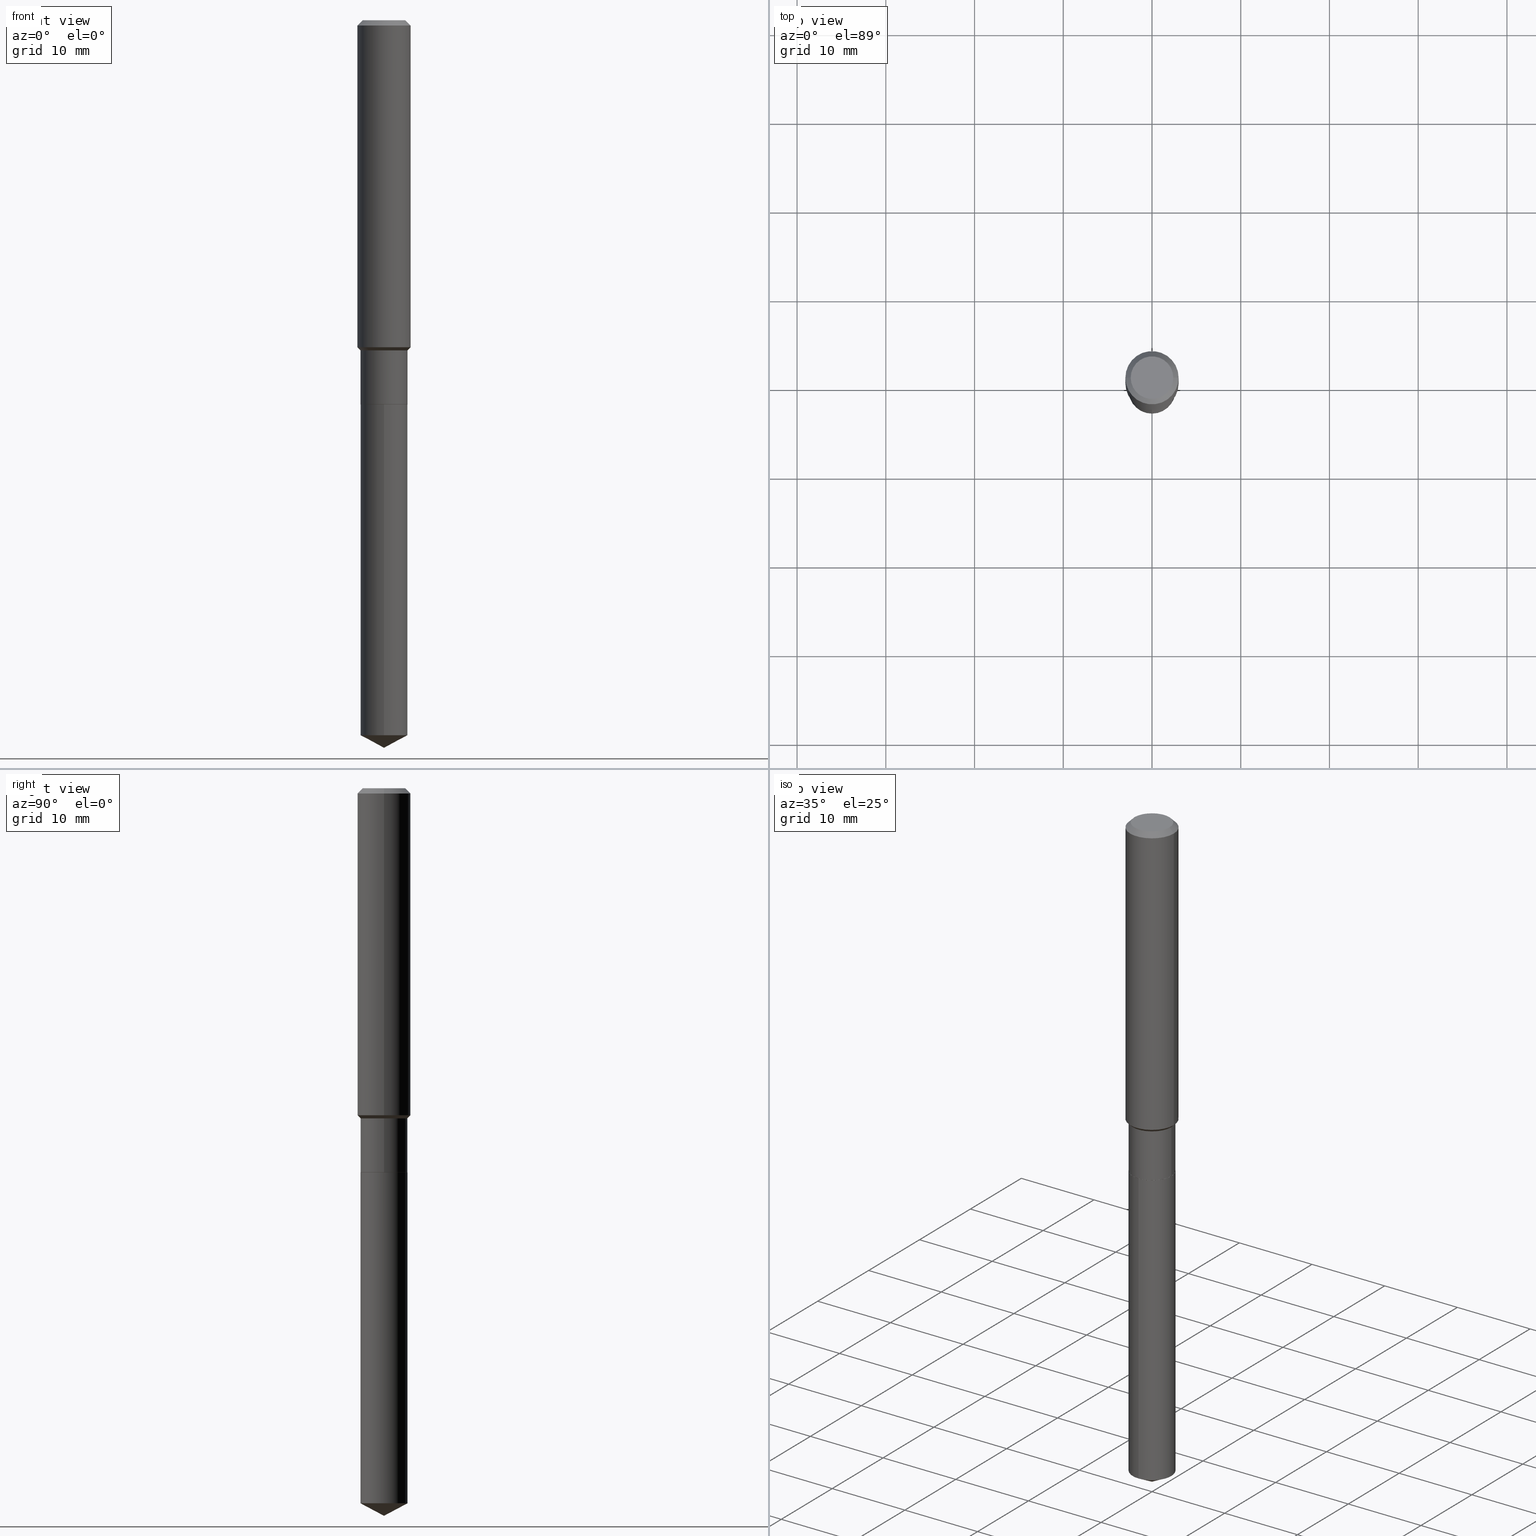
[diagram: canonical four-view strip — front | top / right | iso, engineering-drawing reading convention]
A machine part, canonical four-view strip (front | top / right | iso — engineering-drawing reading convention). The complete STEP part file that produces these views, byte-faithful:
ISO-10303-21;
HEADER;
FILE_DESCRIPTION (( 'STEP AP203' ),
    '1' );
FILE_NAME ('65023.STEP',
    '2024-04-24T19:54:22',
    ( '' ),
    ( '' ),
    'SwSTEP 2.0',
    'SolidWorks 2023',
    '' );
FILE_SCHEMA (( 'CONFIG_CONTROL_DESIGN' ));
ENDSEC;

DATA;
#1 = CARTESIAN_POINT ( 'NONE',  ( 4.168790673903801858E-29, -5.951928238325910137E-15, -1.704699999999999882 ) ) ;
#2 = AXIS2_PLACEMENT_3D ( 'NONE', #20, #179, #142 ) ;
#3 = EDGE_LOOP ( 'NONE', ( #419, #229, #440, #464 ) ) ;
#4 = PRODUCT_DEFINITION_SHAPE ( 'NONE', 'NONE',  #246 ) ;
#5 = COORDINATED_UNIVERSAL_TIME_OFFSET ( 5, 0, .BEHIND. ) ;
#6 = FACE_OUTER_BOUND ( 'NONE', #314, .T. ) ;
#7 = EDGE_CURVE ( 'NONE', #355, #467, #446, .T. ) ;
#8 = VERTEX_POINT ( 'NONE', #248 ) ;
#9 = PERSON_AND_ORGANIZATION ( #29, #466 ) ;
#10 = CARTESIAN_POINT ( 'NONE',  ( 4.168790673903801858E-29, -5.951928238325910137E-15, -1.704699999999999882 ) ) ;
#11 = VERTEX_POINT ( 'NONE', #423 ) ;
#12 = CARTESIAN_POINT ( 'NONE',  ( 0.1043499999999999844, -6.678854653073050255E-15, -1.704200000000000159 ) ) ;
#13 = DIRECTION ( 'NONE',  ( 1.000000000000000000, -6.982962677686267499E-15, 4.875432709231658792E-29 ) ) ;
#14 = CIRCLE ( 'NONE', #478, 0.1043499999999999844 ) ;
#15 = AXIS2_PLACEMENT_3D ( 'NONE', #120, #443, #450 ) ;
#16 = ADVANCED_FACE ( 'NONE', ( #459 ), #125, .T. ) ;
#17 = CARTESIAN_POINT ( 'NONE',  ( 0.000000000000000000, 0.000000000000000000, 0.000000000000000000 ) ) ;
#18 = EDGE_CURVE ( 'NONE', #11, #210, #370, .T. ) ;
#19 = DIRECTION ( 'NONE',  ( -2.445468806185136597E-29, 3.491481338843145583E-15, 1.000000000000000000 ) ) ;
#20 = CARTESIAN_POINT ( 'NONE',  ( 4.168790673903801858E-29, -5.951928238325910137E-15, -1.704699999999999882 ) ) ;
#21 = VECTOR ( 'NONE', #194, 39.37007874015748143 ) ;
#22 = DIRECTION ( 'NONE',  ( 2.445468806185136597E-29, -3.491481338843145583E-15, -1.000000000000000000 ) ) ;
#23 = EDGE_CURVE ( 'NONE', #150, #233, #315, .T. ) ;
#24 = CARTESIAN_POINT ( 'NONE',  ( -7.286721554164842150E-16, -0.1043500000000110589, -3.172816120806124296 ) ) ;
#25 = CARTESIAN_POINT ( 'NONE',  ( 3.581878160419369815E-29, -5.113972717003555292E-15, -1.464700000000000113 ) ) ;
#26 = EDGE_CURVE ( 'NONE', #210, #131, #171, .T. ) ;
#27 = AXIS2_PLACEMENT_3D ( 'NONE', #379, #310, #240 ) ;
#28 = FACE_OUTER_BOUND ( 'NONE', #200, .T. ) ;
#29 = PERSON ( 'UNSPECIFIED', 'UNSPECIFIED', 'UNSPECIFIED', ('UNSPECIFIED'), ('UNSPECIFIED'), ('UNSPECIFIED') ) ;
#30 = LINE ( 'NONE', #477, #144 ) ;
#31 = DIRECTION ( 'NONE',  ( 1.000000000000000000, -6.982962677686263555E-15, 0.000000000000000000 ) ) ;
#32 = EDGE_CURVE ( 'NONE', #397, #233, #83, .T. ) ;
#33 = CALENDAR_DATE ( 2024, 24, 4 ) ;
#34 = CC_DESIGN_APPROVAL ( #159, ( #246 ) ) ;
#35 = CARTESIAN_POINT ( 'NONE',  ( 5.776197320209327532E-31, -8.246878922347559293E-17, -0.02362000000000014088 ) ) ;
#36 = EDGE_LOOP ( 'NONE', ( #56, #331 ) ) ;
#37 = CARTESIAN_POINT ( 'NONE',  ( -0.1043499999999999706, 7.414513447656643348E-16, -5.132908766680992704E-30 ) ) ;
#38 = APPROVAL_STATUS ( 'not_yet_approved' ) ;
#39 = CARTESIAN_POINT ( 'NONE',  ( 7.759082448504334788E-29, -1.107774293063296886E-14, -3.172816120806124740 ) ) ;
#40 = ORIENTED_EDGE ( 'NONE', *, *, #258, .T. ) ;
#41 = CARTESIAN_POINT ( 'NONE',  ( -0.1181000000000001632, -4.226813877661782197E-15, -1.450949999999999962 ) ) ;
#42 = CONICAL_SURFACE ( 'NONE', #398, 0.1180999999999999966, 0.7853981633974460586 ) ;
#43 = CIRCLE ( 'NONE', #266, 0.1043499999999999567 ) ;
#44 = EDGE_LOOP ( 'NONE', ( #280, #350, #195 ) ) ;
#45 = APPROVAL_ROLE ( '' ) ;
#46 = CC_DESIGN_DATE_AND_TIME_ASSIGNMENT ( #191, #345, ( #246 ) ) ;
#47 = CARTESIAN_POINT ( 'NONE',  ( 7.414513447657420375E-16, 0.1043499999999889100, -3.172816120806125628 ) ) ;
#48 = ORIENTED_EDGE ( 'NONE', *, *, #429, .F. ) ;
#49 = ORIENTED_EDGE ( 'NONE', *, *, #168, .F. ) ;
#50 = LINE ( 'NONE', #238, #66 ) ;
#51 = AXIS2_PLACEMENT_3D ( 'NONE', #214, #140, #359 ) ;
#52 = VERTEX_POINT ( 'NONE', #285 ) ;
#53 = VECTOR ( 'NONE', #259, 39.37007874015748143 ) ;
#54 = EDGE_CURVE ( 'NONE', #52, #131, #247, .T. ) ;
#55 = APPLICATION_CONTEXT ( 'configuration controlled 3d designs of mechanical parts and assemblies' ) ;
#56 = ORIENTED_EDGE ( 'NONE', *, *, #7, .F. ) ;
#57 = ADVANCED_BREP_SHAPE_REPRESENTATION ( '65023', ( #279, #103, #176 ), #198 ) ;
#58 = DIRECTION ( 'NONE',  ( -2.445468806185136877E-29, 3.491481338843145188E-15, 1.000000000000000000 ) ) ;
#59 = ADVANCED_FACE ( 'NONE', ( #211 ), #356, .F. ) ;
#60 = DIRECTION ( 'NONE',  ( 2.438088387897960049E-29, -3.491481338843145188E-15, -1.000000000000000000 ) ) ;
#61 = AXIS2_PLACEMENT_3D ( 'NONE', #257, #141, #216 ) ;
#62 = LOCAL_TIME ( 15, 54, 22.00000000000000000, #418 ) ;
#63 = CARTESIAN_POINT ( 'NONE',  ( 7.759082448504334788E-29, -1.107774293063296886E-14, -3.172816120806124740 ) ) ;
#64 = CARTESIAN_POINT ( 'NONE',  ( 4.168790673903801858E-29, -5.951928238325910137E-15, -1.704699999999999882 ) ) ;
#65 = PLANE ( 'NONE',  #123 ) ;
#66 = VECTOR ( 'NONE', #204, 39.37007874015748143 ) ;
#67 = LINE ( 'NONE', #220, #317 ) ;
#68 = CARTESIAN_POINT ( 'NONE',  ( 0.1043499999999999567, -5.842644872420116914E-15, -1.464700000000000113 ) ) ;
#69 = ADVANCED_FACE ( 'NONE', ( #470 ), #65, .F. ) ;
#70 = DIRECTION ( 'NONE',  ( 1.000000000000000000, -6.982962677686266711E-15, 0.000000000000000000 ) ) ;
#71 = ORIENTED_EDGE ( 'NONE', *, *, #18, .T. ) ;
#72 = PERSON_AND_ORGANIZATION ( #29, #466 ) ;
#73 = VECTOR ( 'NONE', #437, 39.37007874015748143 ) ;
#74 = AXIS2_PLACEMENT_3D ( 'NONE', #412, #376, #416 ) ;
#75 = DIRECTION ( 'NONE',  ( -2.445468806185136597E-29, 3.491481338843145583E-15, 1.000000000000000000 ) ) ;
#76 = EDGE_LOOP ( 'NONE', ( #245, #161, #377 ) ) ;
#77 = DATE_TIME_ROLE ( 'classification_date' ) ;
#78 = CARTESIAN_POINT ( 'NONE',  ( 7.894839211577179450E-29, -1.127136153377891818E-14, -3.228299999999999947 ) ) ;
#79 = ORIENTED_EDGE ( 'NONE', *, *, #99, .T. ) ;
#80 = CARTESIAN_POINT ( 'NONE',  ( 4.168790673903801858E-29, -5.951928238325910137E-15, -1.704699999999999882 ) ) ;
#81 = PERSON_AND_ORGANIZATION ( #29, #466 ) ;
#82 = FACE_OUTER_BOUND ( 'NONE', #282, .T. ) ;
#83 = CIRCLE ( 'NONE', #212, 0.1043499999999999844 ) ;
#84 = EDGE_LOOP ( 'NONE', ( #385, #146, #203, #316 ) ) ;
#85 = ADVANCED_FACE ( 'NONE', ( #250 ), #431, .T. ) ;
#86 = CARTESIAN_POINT ( 'NONE',  ( 4.168790673903801858E-29, -5.951928238325910137E-15, -1.704699999999999882 ) ) ;
#87 = DIRECTION ( 'NONE',  ( 1.000000000000000000, -6.982962677686266711E-15, 4.876176775795936353E-29 ) ) ;
#88 = ADVANCED_FACE ( 'NONE', ( #28 ), #357, .T. ) ;
#89 = CARTESIAN_POINT ( 'NONE',  ( 0.1180999999999999966, -8.926936027602933910E-16, -0.02362000000000014088 ) ) ;
#90 = VECTOR ( 'NONE', #129, 39.37007874015748143 ) ;
#91 = DIRECTION ( 'NONE',  ( -2.445509400597785570E-29, 3.491423205333741467E-15, 1.000000000000000000 ) ) ;
#92 = AXIS2_PLACEMENT_3D ( 'NONE', #86, #272, #236 ) ;
#93 = ORIENTED_EDGE ( 'NONE', *, *, #262, .T. ) ;
#94 = ORIENTED_EDGE ( 'NONE', *, *, #403, .T. ) ;
#95 = CARTESIAN_POINT ( 'NONE',  ( 5.776197320209327532E-31, -8.246878922347559293E-17, -0.02362000000000014088 ) ) ;
#96 = AXIS2_PLACEMENT_3D ( 'NONE', #10, #389, #122 ) ;
#97 = CARTESIAN_POINT ( 'NONE',  ( -0.1043499999999999567, -4.790626262564358219E-15, -1.464700000000000113 ) ) ;
#98 = CARTESIAN_POINT ( 'NONE',  ( 5.776197320209327532E-31, -8.246878922347559293E-17, -0.02362000000000014088 ) ) ;
#99 = EDGE_CURVE ( 'NONE', #172, #380, #100, .T. ) ;
#100 = LINE ( 'NONE', #363, #73 ) ;
#101 = AXIS2_PLACEMENT_3D ( 'NONE', #35, #160, #70 ) ;
#102 = SECURITY_CLASSIFICATION ( '', '', #378 ) ;
#103 = MANIFOLD_SOLID_BREP ( 'Body-Move/Copy2[2]', #155 ) ;
#104 = DIRECTION ( 'NONE',  ( -2.445509400597785570E-29, 3.491423205333741467E-15, 1.000000000000000000 ) ) ;
#105 = EDGE_CURVE ( 'NONE', #150, #452, #14, .T. ) ;
#106 = CYLINDRICAL_SURFACE ( 'NONE', #436, 0.1181000000000000799 ) ;
#107 = PERSON_AND_ORGANIZATION ( #29, #466 ) ;
#108 = DIRECTION ( 'NONE',  ( 1.000000000000000000, -6.982962677686263555E-15, 0.000000000000000000 ) ) ;
#109 = ORIENTED_EDGE ( 'NONE', *, *, #235, .T. ) ;
#110 = APPROVAL_ROLE ( '' ) ;
#111 = AXIS2_PLACEMENT_3D ( 'NONE', #439, #75, #108 ) ;
#112 = APPROVAL_PERSON_ORGANIZATION ( #375, #402, #45 ) ;
#113 = LINE ( 'NONE', #294, #53 ) ;
#114 = EDGE_CURVE ( 'NONE', #210, #11, #343, .T. ) ;
#115 = ORIENTED_EDGE ( 'NONE', *, *, #304, .F. ) ;
#116 = DATE_AND_TIME ( #196, #170 ) ;
#117 = DIRECTION ( 'NONE',  ( -2.445468806185136597E-29, 3.491481338843145583E-15, 1.000000000000000000 ) ) ;
#118 = ORIENTED_EDGE ( 'NONE', *, *, #235, .F. ) ;
#119 = CALENDAR_DATE ( 2024, 24, 4 ) ;
#120 = CARTESIAN_POINT ( 'NONE',  ( 3.548252964334323940E-29, -5.065964848594461971E-15, -1.450949999999999962 ) ) ;
#121 = ORIENTED_EDGE ( 'NONE', *, *, #429, .T. ) ;
#122 = DIRECTION ( 'NONE',  ( -6.982962677686265922E-15, -1.000000000000000000, 2.617966452960482631E-15 ) ) ;
#123 = AXIS2_PLACEMENT_3D ( 'NONE', #293, #60, #135 ) ;
#124 = AXIS2_PLACEMENT_3D ( 'NONE', #462, #127, #166 ) ;
#125 = CYLINDRICAL_SURFACE ( 'NONE', #249, 0.1181000000000000799 ) ;
#126 = EDGE_CURVE ( 'NONE', #380, #154, #254, .T. ) ;
#127 = DIRECTION ( 'NONE',  ( -2.445509400597785570E-29, 3.491423205333741467E-15, 1.000000000000000000 ) ) ;
#128 = ORIENTED_EDGE ( 'NONE', *, *, #403, .F. ) ;
#129 = DIRECTION ( 'NONE',  ( -2.445509400597785570E-29, 3.491423205333741862E-15, 1.000000000000000000 ) ) ;
#130 = CONICAL_SURFACE ( 'NONE', #51, 0.1043499999999999567, 0.7853981633974526089 ) ;
#131 = VERTEX_POINT ( 'NONE', #472 ) ;
#132 = ADVANCED_FACE ( 'NONE', ( #287 ), #130, .T. ) ;
#133 = AXIS2_PLACEMENT_3D ( 'NONE', #349, #202, #275 ) ;
#134 = ORIENTED_EDGE ( 'NONE', *, *, #366, .T. ) ;
#135 = DIRECTION ( 'NONE',  ( -1.000000000000000000, 6.982962677686265922E-15, -4.876176775795935793E-29 ) ) ;
#136 = DIRECTION ( 'NONE',  ( -2.445468806185136597E-29, 3.491481338843145583E-15, 1.000000000000000000 ) ) ;
#137 = AXIS2_PLACEMENT_3D ( 'NONE', #289, #399, #321 ) ;
#138 = LOCAL_TIME ( 15, 54, 22.00000000000000000, #5 ) ;
#139 = EDGE_CURVE ( 'NONE', #172, #286, #404, .T. ) ;
#140 = DIRECTION ( 'NONE',  ( -2.445468806185136597E-29, 3.491481338843145583E-15, 1.000000000000000000 ) ) ;
#141 = DIRECTION ( 'NONE',  ( -2.445468806185136597E-29, 3.491481338843145583E-15, 1.000000000000000000 ) ) ;
#142 = DIRECTION ( 'NONE',  ( 1.000000000000000000, -6.982962677686265922E-15, 4.876176775795935793E-29 ) ) ;
#143 = ADVANCED_FACE ( 'NONE', ( #430 ), #288, .T. ) ;
#144 = VECTOR ( 'NONE', #268, 39.37007874015748143 ) ;
#145 = DIRECTION ( 'NONE',  ( -2.445468806185136597E-29, 3.491481338843145583E-15, 1.000000000000000000 ) ) ;
#146 = ORIENTED_EDGE ( 'NONE', *, *, #18, .F. ) ;
#147 = PRODUCT_RELATED_PRODUCT_CATEGORY ( 'detail', '', ( #302 ) ) ;
#148 = PERSON_AND_ORGANIZATION_ROLE ( 'design_owner' ) ;
#149 = DIRECTION ( 'NONE',  ( -2.445509400597785570E-29, 3.491423205333741467E-15, 1.000000000000000000 ) ) ;
#150 = VERTEX_POINT ( 'NONE', #24 ) ;
#151 = UNCERTAINTY_MEASURE_WITH_UNIT (LENGTH_MEASURE( 1.000000000000000082E-05 ), #230, 'distance_accuracy_value', 'NONE');
#152 = PERSON_AND_ORGANIZATION_ROLE ( 'creator' ) ;
#153 = CYLINDRICAL_SURFACE ( 'NONE', #256, 0.1043499999999999706 ) ;
#154 = VERTEX_POINT ( 'NONE', #177 ) ;
#155 = CLOSED_SHELL ( 'NONE', ( #88, #219, #361, #85, #414, #277, #132, #16, #143, #69, #59, #296 ) ) ;
#156 = PERSON_AND_ORGANIZATION_ROLE ( 'design_supplier' ) ;
#157 = AXIS2_PLACEMENT_3D ( 'NONE', #185, #117, #480 ) ;
#158 = APPROVAL_PERSON_ORGANIZATION ( #9, #336, #110 ) ;
#159 = APPROVAL ( #453, 'UNSPECIFIED' ) ;
#160 = DIRECTION ( 'NONE',  ( -2.445468806185136597E-29, 3.491481338843145583E-15, 1.000000000000000000 ) ) ;
#161 = ORIENTED_EDGE ( 'NONE', *, *, #332, .T. ) ;
#162 = COORDINATED_UNIVERSAL_TIME_OFFSET ( 5, 0, .BEHIND. ) ;
#163 = DIRECTION ( 'NONE',  ( 1.000000000000000000, -6.982962677686268288E-15, 0.000000000000000000 ) ) ;
#164 = ORIENTED_EDGE ( 'NONE', *, *, #320, .T. ) ;
#165 = APPLICATION_PROTOCOL_DEFINITION ( 'international standard', 'config_control_design', 1994, #55 ) ;
#166 = DIRECTION ( 'NONE',  ( -6.982962677686268288E-15, -1.000000000000000000, 3.541896320645571124E-15 ) ) ;
#167 = ORIENTED_EDGE ( 'NONE', *, *, #406, .T. ) ;
#168 = EDGE_CURVE ( 'NONE', #452, #397, #322, .T. ) ;
#169 = CYLINDRICAL_SURFACE ( 'NONE', #96, 0.1043499999999999844 ) ;
#170 = LOCAL_TIME ( 15, 54, 22.00000000000000000, #449 ) ;
#171 = LINE ( 'NONE', #89, #243 ) ;
#172 = VERTEX_POINT ( 'NONE', #97 ) ;
#173 = DIRECTION ( 'NONE',  ( -6.982962677686265922E-15, -1.000000000000000000, 2.617966452960482631E-15 ) ) ;
#174 = VECTOR ( 'NONE', #263, 39.37007874015748854 ) ;
#175 = ORIENTED_EDGE ( 'NONE', *, *, #105, .T. ) ;
#176 = AXIS2_PLACEMENT_3D ( 'NONE', #441, #201, #457 ) ;
#177 = CARTESIAN_POINT ( 'NONE',  ( -0.1180999999999999966, -1.735065847976289334E-15, -0.02362000000000014088 ) ) ;
#178 = EDGE_CURVE ( 'NONE', #467, #355, #206, .T. ) ;
#179 = DIRECTION ( 'NONE',  ( -2.438088387897960049E-29, 3.491481338843145188E-15, 1.000000000000000000 ) ) ;
#180 = FACE_OUTER_BOUND ( 'NONE', #3, .T. ) ;
#181 = CC_DESIGN_SECURITY_CLASSIFICATION ( #102, ( #274 ) ) ;
#182 = ADVANCED_FACE ( 'NONE', ( #184 ), #400, .T. ) ;
#183 = DIRECTION ( 'NONE',  ( 1.000000000000000000, -6.982962677686267499E-15, 4.875432709231658792E-29 ) ) ;
#184 = FACE_OUTER_BOUND ( 'NONE', #276, .T. ) ;
#185 = CARTESIAN_POINT ( 'NONE',  ( 0.000000000000000000, 0.000000000000000000, 0.000000000000000000 ) ) ;
#186 = AXIS2_PLACEMENT_3D ( 'NONE', #39, #149, #303 ) ;
#187 = DESIGN_CONTEXT ( 'detailed design', #55, 'design' ) ;
#188 = APPROVAL_STATUS ( 'not_yet_approved' ) ;
#189 = DIRECTION ( 'NONE',  ( -0.7071067811866199593, 7.493145998870616062E-15, 0.7071067811864750752 ) ) ;
#190 = ORIENTED_EDGE ( 'NONE', *, *, #262, .F. ) ;
#191 = DATE_AND_TIME ( #33, #138 ) ;
#192 = LINE ( 'NONE', #221, #381 ) ;
#193 = ORIENTED_EDGE ( 'NONE', *, *, #7, .T. ) ;
#194 = DIRECTION ( 'NONE',  ( -2.445468806185136877E-29, 3.491481338843145188E-15, 1.000000000000000000 ) ) ;
#195 = ORIENTED_EDGE ( 'NONE', *, *, #366, .F. ) ;
#196 = CALENDAR_DATE ( 2024, 24, 4 ) ;
#197 = AXIS2_PLACEMENT_3D ( 'NONE', #434, #136, #252 ) ;
#198 =( GEOMETRIC_REPRESENTATION_CONTEXT ( 3 ) GLOBAL_UNCERTAINTY_ASSIGNED_CONTEXT ( ( #151 ) ) GLOBAL_UNIT_ASSIGNED_CONTEXT ( ( #230, #337, #227 ) ) REPRESENTATION_CONTEXT ( 'NONE', 'WORKASPACE' ) );
#199 = FACE_OUTER_BOUND ( 'NONE', #264, .T. ) ;
#200 = EDGE_LOOP ( 'NONE', ( #193, #164, #48, #118 ) ) ;
#201 = DIRECTION ( 'NONE',  ( 0.000000000000000000, 0.000000000000000000, 1.000000000000000000 ) ) ;
#202 = DIRECTION ( 'NONE',  ( -2.445509400597785570E-29, 3.491423205333741467E-15, 1.000000000000000000 ) ) ;
#203 = ORIENTED_EDGE ( 'NONE', *, *, #421, .T. ) ;
#204 = DIRECTION ( 'NONE',  ( -6.165590087286829718E-15, -0.8829475928589257672, 0.4694715627858929707 ) ) ;
#205 = CARTESIAN_POINT ( 'NONE',  ( 4.716267017698007905E-46, -6.733579360998555036E-32, -1.928573779297252010E-17 ) ) ;
#206 = CIRCLE ( 'NONE', #197, 0.1038499999999999840 ) ;
#207 = VECTOR ( 'NONE', #358, 39.37007874015748143 ) ;
#208 = CC_DESIGN_APPROVAL ( #336, ( #274 ) ) ;
#209 = ORIENTED_EDGE ( 'NONE', *, *, #432, .T. ) ;
#210 = VERTEX_POINT ( 'NONE', #405 ) ;
#211 = FACE_OUTER_BOUND ( 'NONE', #36, .T. ) ;
#212 = AXIS2_PLACEMENT_3D ( 'NONE', #425, #91, #173 ) ;
#213 = DIRECTION ( 'NONE',  ( -6.982962677686265922E-15, -1.000000000000000000, 5.235932905920965262E-15 ) ) ;
#214 = CARTESIAN_POINT ( 'NONE',  ( 3.581878160419369815E-29, -5.113972717003555292E-15, -1.464700000000000113 ) ) ;
#215 = DIRECTION ( 'NONE',  ( -2.445509400597785570E-29, 3.491423205333741467E-15, 1.000000000000000000 ) ) ;
#216 = DIRECTION ( 'NONE',  ( 1.000000000000000000, -6.982962677686268288E-15, 0.000000000000000000 ) ) ;
#217 = AXIS2_PLACEMENT_3D ( 'NONE', #360, #475, #183 ) ;
#218 = LOCAL_TIME ( 15, 54, 22.00000000000000000, #487 ) ;
#219 = ADVANCED_FACE ( 'NONE', ( #180 ), #42, .T. ) ;
#220 = CARTESIAN_POINT ( 'NONE',  ( 0.1038499999999999840, -6.677108912403628752E-15, -1.704699999999999882 ) ) ;
#221 = CARTESIAN_POINT ( 'NONE',  ( -0.1038499999999999840, -5.214029607239046109E-15, -1.704699999999999882 ) ) ;
#222 = DIRECTION ( 'NONE',  ( 1.000000000000000000, -6.982962677686265922E-15, 0.000000000000000000 ) ) ;
#223 = ORIENTED_EDGE ( 'NONE', *, *, #387, .T. ) ;
#224 = CALENDAR_DATE ( 2024, 24, 4 ) ;
#225 = DIRECTION ( 'NONE',  ( -2.445468806185136597E-29, 3.491481338843145583E-15, 1.000000000000000000 ) ) ;
#226 = ORIENTED_EDGE ( 'NONE', *, *, #32, .F. ) ;
#227 =( NAMED_UNIT ( * ) SI_UNIT ( $, .STERADIAN. ) SOLID_ANGLE_UNIT ( ) );
#228 = DIRECTION ( 'NONE',  ( -2.445468806185136597E-29, 3.491481338843145583E-15, 1.000000000000000000 ) ) ;
#229 = ORIENTED_EDGE ( 'NONE', *, *, #26, .T. ) ;
#230 =( CONVERSION_BASED_UNIT ( 'INCH', #490 ) LENGTH_UNIT ( ) NAMED_UNIT ( #232 ) );
#231 = DIRECTION ( 'NONE',  ( -6.982962677686265922E-15, -1.000000000000000000, 2.617966452960482631E-15 ) ) ;
#232 = DIMENSIONAL_EXPONENTS ( 1.000000000000000000, 0.000000000000000000, 0.000000000000000000, 0.000000000000000000, 0.000000000000000000, 0.000000000000000000, 0.000000000000000000 ) ;
#233 = VERTEX_POINT ( 'NONE', #401 ) ;
#234 = CIRCLE ( 'NONE', #186, 0.1043499999999999844 ) ;
#235 = EDGE_CURVE ( 'NONE', #355, #444, #67, .T. ) ;
#236 = DIRECTION ( 'NONE',  ( 6.982962677686265922E-15, 1.000000000000000000, -3.491423205333741862E-15 ) ) ;
#237 = EDGE_LOOP ( 'NONE', ( #374, #308, #311, #394 ) ) ;
#238 = CARTESIAN_POINT ( 'NONE',  ( 7.894699595359345386E-29, -1.127155973416588030E-14, -3.228299999999999947 ) ) ;
#239 = ORIENTED_EDGE ( 'NONE', *, *, #432, .F. ) ;
#240 = DIRECTION ( 'NONE',  ( 1.000000000000000000, -6.982962677686266711E-15, 0.000000000000000000 ) ) ;
#241 = DIRECTION ( 'NONE',  ( 0.7071067811865459074, -7.319954787623249734E-15, -0.7071067811865491270 ) ) ;
#242 = AXIS2_PLACEMENT_3D ( 'NONE', #424, #465, #388 ) ;
#243 = VECTOR ( 'NONE', #241, 39.37007874015748143 ) ;
#244 = AXIS2_PLACEMENT_3D ( 'NONE', #80, #346, #231 ) ;
#245 = ORIENTED_EDGE ( 'NONE', *, *, #471, .F. ) ;
#246 = PRODUCT_DEFINITION ( 'UNKNOWN', '', #274, #187 ) ;
#247 = LINE ( 'NONE', #396, #362 ) ;
#248 = CARTESIAN_POINT ( 'NONE',  ( -0.1043499999999999844, -4.790626262564358219E-15, -1.704200000000000159 ) ) ;
#249 = AXIS2_PLACEMENT_3D ( 'NONE', #17, #19, #87 ) ;
#250 = FACE_OUTER_BOUND ( 'NONE', #260, .T. ) ;
#251 = CONICAL_SURFACE ( 'NONE', #124, 74.04434902938332641, 1.082104136236485381 ) ;
#252 = DIRECTION ( 'NONE',  ( 1.000000000000000000, -6.982962677686268288E-15, 0.000000000000000000 ) ) ;
#253 = DIRECTION ( 'NONE',  ( -1.000000000000000000, 6.982962677686266711E-15, 0.000000000000000000 ) ) ;
#254 = LINE ( 'NONE', #327, #207 ) ;
#255 = VECTOR ( 'NONE', #334, 39.37007874015748143 ) ;
#256 = AXIS2_PLACEMENT_3D ( 'NONE', #299, #145, #407 ) ;
#257 = CARTESIAN_POINT ( 'NONE',  ( 4.168790673903801858E-29, -5.951928238325910137E-15, -1.704699999999999882 ) ) ;
#258 = EDGE_CURVE ( 'NONE', #444, #286, #30, .T. ) ;
#259 = DIRECTION ( 'NONE',  ( -0.7071067811865459074, 2.468850131082240100E-15, -0.7071067811865491270 ) ) ;
#260 = EDGE_LOOP ( 'NONE', ( #342, #79, #190, #115 ) ) ;
#261 = PERSON_AND_ORGANIZATION ( #29, #466 ) ;
#262 = EDGE_CURVE ( 'NONE', #52, #380, #323, .T. ) ;
#263 = DIRECTION ( 'NONE',  ( 6.273719981627760554E-15, 0.8829475928589289868, 0.4694715627858866425 ) ) ;
#264 = EDGE_LOOP ( 'NONE', ( #489, #347, #109, #128 ) ) ;
#265 = AXIS2_PLACEMENT_3D ( 'NONE', #64, #215, #435 ) ;
#266 = AXIS2_PLACEMENT_3D ( 'NONE', #297, #488, #222 ) ;
#267 = PERSON_AND_ORGANIZATION_ROLE ( 'classification_officer' ) ;
#268 = DIRECTION ( 'NONE',  ( -2.445468806185136877E-29, 3.491481338843145188E-15, 1.000000000000000000 ) ) ;
#269 = APPROVAL_DATE_TIME ( #116, #402 ) ;
#270 = LINE ( 'NONE', #37, #21 ) ;
#271 = EDGE_LOOP ( 'NONE', ( #121, #223, #335, #481 ) ) ;
#272 = DIRECTION ( 'NONE',  ( 2.445509400597785289E-29, -3.491423205333741862E-15, -1.000000000000000000 ) ) ;
#273 = EDGE_LOOP ( 'NONE', ( #209, #455 ) ) ;
#274 = PRODUCT_DEFINITION_FORMATION_WITH_SPECIFIED_SOURCE ( 'ANY', '', #302, .NOT_KNOWN. ) ;
#275 = DIRECTION ( 'NONE',  ( -6.982962677686268288E-15, -1.000000000000000000, 3.541896320645571124E-15 ) ) ;
#276 = EDGE_LOOP ( 'NONE', ( #175, #428, #239, #417 ) ) ;
#277 = ADVANCED_FACE ( 'NONE', ( #6 ), #408, .T. ) ;
#278 = PLANE ( 'NONE',  #92 ) ;
#279 = MANIFOLD_SOLID_BREP ( 'Body-Move/Copy2[1]', #391 ) ;
#280 = ORIENTED_EDGE ( 'NONE', *, *, #332, .F. ) ;
#281 = EDGE_CURVE ( 'NONE', #131, #154, #426, .T. ) ;
#282 = EDGE_LOOP ( 'NONE', ( #49, #134, #463, #226 ) ) ;
#283 = APPLICATION_CONTEXT ( 'configuration controlled 3d designs of mechanical parts and assemblies' ) ;
#284 = AXIS2_PLACEMENT_3D ( 'NONE', #25, #291, #476 ) ;
#285 = CARTESIAN_POINT ( 'NONE',  ( 0.1181000000000001632, -5.890652740829211023E-15, -1.450949999999999962 ) ) ;
#286 = VERTEX_POINT ( 'NONE', #68 ) ;
#287 = FACE_OUTER_BOUND ( 'NONE', #237, .T. ) ;
#288 = CONICAL_SURFACE ( 'NONE', #392, 0.1180999999999999966, 0.7853981633974460586 ) ;
#289 = CARTESIAN_POINT ( 'NONE',  ( 3.581878160419369815E-29, -5.113972717003555292E-15, -1.464700000000000113 ) ) ;
#290 = CONICAL_SURFACE ( 'NONE', #133, 74.04434902938332641, 1.082104136236485381 ) ;
#291 = DIRECTION ( 'NONE',  ( -2.445468806185136597E-29, 3.491481338843145583E-15, 1.000000000000000000 ) ) ;
#292 = DIRECTION ( 'NONE',  ( -2.445509400597785570E-29, 3.491423205333741862E-15, 1.000000000000000000 ) ) ;
#293 = CARTESIAN_POINT ( 'NONE',  ( 2.358133508849003952E-46, -3.366789680499277518E-32, -9.642868896486260050E-18 ) ) ;
#294 = CARTESIAN_POINT ( 'NONE',  ( -0.1180999999999999966, 7.422191030112725094E-16, -0.02362000000000014088 ) ) ;
#295 = EDGE_LOOP ( 'NONE', ( #71, #410 ) ) ;
#296 = ADVANCED_FACE ( 'NONE', ( #199 ), #460, .T. ) ;
#297 = CARTESIAN_POINT ( 'NONE',  ( 3.581878160419369815E-29, -5.113972717003555292E-15, -1.464700000000000113 ) ) ;
#298 = EDGE_LOOP ( 'NONE', ( #93, #339, #413, #448 ) ) ;
#299 = CARTESIAN_POINT ( 'NONE',  ( 0.000000000000000000, 0.000000000000000000, 0.000000000000000000 ) ) ;
#300 = ORIENTED_EDGE ( 'NONE', *, *, #442, .F. ) ;
#301 = CALENDAR_DATE ( 2024, 24, 4 ) ;
#302 = PRODUCT ( '65023', '65023', '', ( #445 ) ) ;
#303 = DIRECTION ( 'NONE',  ( -6.982962677686265922E-15, -1.000000000000000000, 5.235932905920965262E-15 ) ) ;
#304 = EDGE_CURVE ( 'NONE', #286, #52, #341, .T. ) ;
#305 = ORIENTED_EDGE ( 'NONE', *, *, #54, .T. ) ;
#306 = APPROVAL_ROLE ( '' ) ;
#307 = CARTESIAN_POINT ( 'NONE',  ( 0.1043499999999999567, -5.842644872420116914E-15, -1.464700000000000113 ) ) ;
#308 = ORIENTED_EDGE ( 'NONE', *, *, #139, .T. ) ;
#309 = DATE_AND_TIME ( #224, #62 ) ;
#310 = DIRECTION ( 'NONE',  ( -2.445468806185136597E-29, 3.491481338843145583E-15, 1.000000000000000000 ) ) ;
#311 = ORIENTED_EDGE ( 'NONE', *, *, #304, .T. ) ;
#312 = AXIS2_PLACEMENT_3D ( 'NONE', #1, #228, #163 ) ;
#313 = CARTESIAN_POINT ( 'NONE',  ( -0.1038499999999999840, -5.211380380064935697E-15, -1.704699999999999882 ) ) ;
#314 = EDGE_LOOP ( 'NONE', ( #371, #94, #40, #319 ) ) ;
#315 = LINE ( 'NONE', #427, #90 ) ;
#316 = ORIENTED_EDGE ( 'NONE', *, *, #442, .T. ) ;
#317 = VECTOR ( 'NONE', #365, 39.37007874015748143 ) ;
#318 = CIRCLE ( 'NONE', #74, 0.1043499999999999844 ) ;
#319 = ORIENTED_EDGE ( 'NONE', *, *, #139, .F. ) ;
#320 = EDGE_CURVE ( 'NONE', #467, #8, #192, .T. ) ;
#321 = DIRECTION ( 'NONE',  ( 1.000000000000000000, -6.982962677686265922E-15, 0.000000000000000000 ) ) ;
#322 = LINE ( 'NONE', #433, #330 ) ;
#323 = CIRCLE ( 'NONE', #111, 0.1181000000000001632 ) ;
#324 = CIRCLE ( 'NONE', #244, 0.1043499999999999844 ) ;
#325 = DIRECTION ( 'NONE',  ( 2.445468806185136597E-29, -3.491481338843145583E-15, -1.000000000000000000 ) ) ;
#326 = CC_DESIGN_PERSON_AND_ORGANIZATION_ASSIGNMENT ( #72, #148, ( #302 ) ) ;
#327 = CARTESIAN_POINT ( 'NONE',  ( -0.1181000000000000799, 8.391509709326788873E-16, -5.809262341591047988E-30 ) ) ;
#328 = DIRECTION ( 'NONE',  ( -1.000000000000000000, 6.982962677686266711E-15, 0.000000000000000000 ) ) ;
#329 = FACE_OUTER_BOUND ( 'NONE', #271, .T. ) ;
#330 = VECTOR ( 'NONE', #292, 39.37007874015748143 ) ;
#331 = ORIENTED_EDGE ( 'NONE', *, *, #178, .F. ) ;
#332 = EDGE_CURVE ( 'NONE', #485, #452, #367, .T. ) ;
#333 = PERSON_AND_ORGANIZATION ( #29, #466 ) ;
#334 = DIRECTION ( 'NONE',  ( 0.7071067811865505703, -2.468850131082288615E-15, 0.7071067811865444641 ) ) ;
#335 = ORIENTED_EDGE ( 'NONE', *, *, #395, .F. ) ;
#336 = APPROVAL ( #188, 'UNSPECIFIED' ) ;
#337 =( NAMED_UNIT ( * ) PLANE_ANGLE_UNIT ( ) SI_UNIT ( $, .RADIAN. ) );
#338 = CARTESIAN_POINT ( 'NONE',  ( 0.000000000000000000, 0.000000000000000000, 0.000000000000000000 ) ) ;
#339 = ORIENTED_EDGE ( 'NONE', *, *, #126, .T. ) ;
#340 = DATE_AND_TIME ( #119, #393 ) ;
#341 = LINE ( 'NONE', #307, #255 ) ;
#342 = ORIENTED_EDGE ( 'NONE', *, *, #395, .T. ) ;
#343 = CIRCLE ( 'NONE', #217, 0.09447999999999998066 ) ;
#344 = CIRCLE ( 'NONE', #27, 0.1180999999999999966 ) ;
#345 = DATE_TIME_ROLE ( 'creation_date' ) ;
#346 = DIRECTION ( 'NONE',  ( -2.445509400597785570E-29, 3.491423205333741467E-15, 1.000000000000000000 ) ) ;
#347 = ORIENTED_EDGE ( 'NONE', *, *, #178, .T. ) ;
#348 = APPLICATION_PROTOCOL_DEFINITION ( 'international standard', 'config_control_design', 1994, #283 ) ;
#349 = CARTESIAN_POINT ( 'NONE',  ( -8.838512886467554739E-28, 1.261861458752300133E-13, 36.14177874015747705 ) ) ;
#350 = ORIENTED_EDGE ( 'NONE', *, *, #471, .T. ) ;
#351 = FACE_OUTER_BOUND ( 'NONE', #76, .T. ) ;
#352 = DIRECTION ( 'NONE',  ( -2.445468806185136597E-29, 3.491481338843145583E-15, 1.000000000000000000 ) ) ;
#353 = CIRCLE ( 'NONE', #473, 0.1043499999999999844 ) ;
#354 = EDGE_LOOP ( 'NONE', ( #390, #167, #305, #300 ) ) ;
#355 = VERTEX_POINT ( 'NONE', #409 ) ;
#356 = PLANE ( 'NONE',  #2 ) ;
#357 = CONICAL_SURFACE ( 'NONE', #61, 0.1038499999999999840, 0.7853981633975507526 ) ;
#358 = DIRECTION ( 'NONE',  ( -2.445468806185136877E-29, 3.491481338843145188E-15, 1.000000000000000000 ) ) ;
#359 = DIRECTION ( 'NONE',  ( 1.000000000000000000, -6.982962677686265922E-15, 0.000000000000000000 ) ) ;
#360 = CARTESIAN_POINT ( 'NONE',  ( 4.716267017698007905E-46, -6.733579360998555036E-32, -1.928573779297252010E-17 ) ) ;
#361 = ADVANCED_FACE ( 'NONE', ( #454 ), #106, .T. ) ;
#362 = VECTOR ( 'NONE', #58, 39.37007874015748143 ) ;
#363 = CARTESIAN_POINT ( 'NONE',  ( -0.1043499999999999567, -4.372521372237891154E-15, -1.464700000000000113 ) ) ;
#364 = CC_DESIGN_PERSON_AND_ORGANIZATION_ASSIGNMENT ( #483, #267, ( #102 ) ) ;
#365 = DIRECTION ( 'NONE',  ( 0.7071067811866199593, -2.468850131083015945E-15, 0.7071067811864750752 ) ) ;
#366 = EDGE_CURVE ( 'NONE', #452, #150, #234, .T. ) ;
#367 = LINE ( 'NONE', #78, #174 ) ;
#368 = APPROVAL_DATE_TIME ( #309, #159 ) ;
#369 = DIRECTION ( 'NONE',  ( -2.445468806185136597E-29, 3.491481338843145583E-15, 1.000000000000000000 ) ) ;
#370 = CIRCLE ( 'NONE', #420, 0.09447999999999998066 ) ;
#371 = ORIENTED_EDGE ( 'NONE', *, *, #387, .F. ) ;
#372 = PERSON_AND_ORGANIZATION_ROLE ( 'creator' ) ;
#373 = DIRECTION ( 'NONE',  ( 1.000000000000000000, -6.982962677686266711E-15, 4.876176775795936353E-29 ) ) ;
#374 = ORIENTED_EDGE ( 'NONE', *, *, #99, .F. ) ;
#375 = PERSON_AND_ORGANIZATION ( #29, #466 ) ;
#376 = DIRECTION ( 'NONE',  ( -2.445468806185136597E-29, 3.491481338843145583E-15, 1.000000000000000000 ) ) ;
#377 = ORIENTED_EDGE ( 'NONE', *, *, #105, .F. ) ;
#378 = SECURITY_CLASSIFICATION_LEVEL ( 'unclassified' ) ;
#379 = CARTESIAN_POINT ( 'NONE',  ( 5.776197320209327532E-31, -8.246878922347559293E-17, -0.02362000000000014088 ) ) ;
#380 = VERTEX_POINT ( 'NONE', #41 ) ;
#381 = VECTOR ( 'NONE', #189, 39.37007874015748143 ) ;
#382 = APPROVAL_DATE_TIME ( #340, #336 ) ;
#383 = CC_DESIGN_PERSON_AND_ORGANIZATION_ASSIGNMENT ( #261, #372, ( #274 ) ) ;
#384 =( LENGTH_UNIT ( ) NAMED_UNIT ( * ) SI_UNIT ( $, .METRE. ) );
#385 = ORIENTED_EDGE ( 'NONE', *, *, #26, .F. ) ;
#386 = FACE_OUTER_BOUND ( 'NONE', #273, .T. ) ;
#387 = EDGE_CURVE ( 'NONE', #8, #172, #270, .T. ) ;
#388 = DIRECTION ( 'NONE',  ( 1.000000000000000000, -6.982962677686268288E-15, 0.000000000000000000 ) ) ;
#389 = DIRECTION ( 'NONE',  ( -2.445509400597785570E-29, 3.491423205333741467E-15, 1.000000000000000000 ) ) ;
#390 = ORIENTED_EDGE ( 'NONE', *, *, #126, .F. ) ;
#391 = CLOSED_SHELL ( 'NONE', ( #182, #482, #469, #456, #486 ) ) ;
#392 = AXIS2_PLACEMENT_3D ( 'NONE', #95, #22, #328 ) ;
#393 = LOCAL_TIME ( 15, 54, 22.00000000000000000, #162 ) ;
#394 = ORIENTED_EDGE ( 'NONE', *, *, #406, .F. ) ;
#395 = EDGE_CURVE ( 'NONE', #286, #172, #43, .T. ) ;
#396 = CARTESIAN_POINT ( 'NONE',  ( 0.1181000000000000799, -8.246878922347486570E-16, 5.758764772215004644E-30 ) ) ;
#397 = VERTEX_POINT ( 'NONE', #484 ) ;
#398 = AXIS2_PLACEMENT_3D ( 'NONE', #98, #325, #253 ) ;
#399 = DIRECTION ( 'NONE',  ( -2.445468806185136597E-29, 3.491481338843145583E-15, 1.000000000000000000 ) ) ;
#400 = CYLINDRICAL_SURFACE ( 'NONE', #265, 0.1043499999999999844 ) ;
#401 = CARTESIAN_POINT ( 'NONE',  ( -7.286721554165200096E-16, -0.1043500000000059519, -1.704699999999999660 ) ) ;
#402 = APPROVAL ( #38, 'UNSPECIFIED' ) ;
#403 = EDGE_CURVE ( 'NONE', #8, #444, #353, .T. ) ;
#404 = CIRCLE ( 'NONE', #284, 0.1043499999999999567 ) ;
#405 = CARTESIAN_POINT ( 'NONE',  ( 0.09447999999999998066, -7.704367267948738690E-16, -1.928573779296752193E-17 ) ) ;
#406 = EDGE_CURVE ( 'NONE', #380, #52, #479, .T. ) ;
#407 = DIRECTION ( 'NONE',  ( 1.000000000000000000, -6.982962677686266711E-15, 4.876176775795936353E-29 ) ) ;
#408 = CYLINDRICAL_SURFACE ( 'NONE', #157, 0.1043499999999999706 ) ;
#409 = CARTESIAN_POINT ( 'NONE',  ( 0.1038499999999999840, -6.677108912403628752E-15, -1.704699999999999882 ) ) ;
#410 = ORIENTED_EDGE ( 'NONE', *, *, #114, .T. ) ;
#411 = DATE_AND_TIME ( #301, #218 ) ;
#412 = CARTESIAN_POINT ( 'NONE',  ( 4.167567939500710177E-29, -5.950182497656488633E-15, -1.704200000000000159 ) ) ;
#413 = ORIENTED_EDGE ( 'NONE', *, *, #281, .F. ) ;
#414 = ADVANCED_FACE ( 'NONE', ( #329 ), #153, .T. ) ;
#415 = SHAPE_DEFINITION_REPRESENTATION ( #4, #57 ) ;
#416 = DIRECTION ( 'NONE',  ( 1.000000000000000000, -6.982962677686263555E-15, 0.000000000000000000 ) ) ;
#417 = ORIENTED_EDGE ( 'NONE', *, *, #23, .F. ) ;
#418 = COORDINATED_UNIVERSAL_TIME_OFFSET ( 5, 0, .BEHIND. ) ;
#419 = ORIENTED_EDGE ( 'NONE', *, *, #114, .F. ) ;
#420 = AXIS2_PLACEMENT_3D ( 'NONE', #205, #352, #13 ) ;
#421 = EDGE_CURVE ( 'NONE', #11, #154, #113, .T. ) ;
#422 = CARTESIAN_POINT ( 'NONE',  ( 7.894837997949831616E-29, -1.127136153377891818E-14, -3.228299999999999947 ) ) ;
#423 = CARTESIAN_POINT ( 'NONE',  ( -0.09447999999999998066, 7.009847083995354710E-16, -1.928573779297727792E-17 ) ) ;
#424 = CARTESIAN_POINT ( 'NONE',  ( 4.168790673903801858E-29, -5.951928238325910137E-15, -1.704699999999999882 ) ) ;
#425 = CARTESIAN_POINT ( 'NONE',  ( 4.168790673903801858E-29, -5.951928238325910137E-15, -1.704699999999999882 ) ) ;
#426 = CIRCLE ( 'NONE', #101, 0.1180999999999999966 ) ;
#427 = CARTESIAN_POINT ( 'NONE',  ( -7.286721554165200096E-16, -0.1043500000000059519, -1.704699999999999660 ) ) ;
#428 = ORIENTED_EDGE ( 'NONE', *, *, #168, .T. ) ;
#429 = EDGE_CURVE ( 'NONE', #444, #8, #318, .T. ) ;
#430 = FACE_OUTER_BOUND ( 'NONE', #84, .T. ) ;
#431 = CONICAL_SURFACE ( 'NONE', #137, 0.1043499999999999567, 0.7853981633974526089 ) ;
#432 = EDGE_CURVE ( 'NONE', #233, #397, #324, .T. ) ;
#433 = CARTESIAN_POINT ( 'NONE',  ( 7.414513447657060458E-16, 0.1043499999999940309, -1.704700000000000326 ) ) ;
#434 = CARTESIAN_POINT ( 'NONE',  ( 4.168790673903801858E-29, -5.951928238325910137E-15, -1.704699999999999882 ) ) ;
#435 = DIRECTION ( 'NONE',  ( -6.982962677686265922E-15, -1.000000000000000000, 2.617966452960482631E-15 ) ) ;
#436 = AXIS2_PLACEMENT_3D ( 'NONE', #338, #225, #373 ) ;
#437 = DIRECTION ( 'NONE',  ( -0.7071067811865505703, 7.493145998870365204E-15, 0.7071067811865444641 ) ) ;
#438 = CC_DESIGN_DATE_AND_TIME_ASSIGNMENT ( #411, #77, ( #102 ) ) ;
#439 = CARTESIAN_POINT ( 'NONE',  ( 3.548252964334323940E-29, -5.065964848594461971E-15, -1.450949999999999962 ) ) ;
#440 = ORIENTED_EDGE ( 'NONE', *, *, #281, .T. ) ;
#441 = CARTESIAN_POINT ( 'NONE',  ( 0.000000000000000000, 0.000000000000000000, 0.000000000000000000 ) ) ;
#442 = EDGE_CURVE ( 'NONE', #154, #131, #344, .T. ) ;
#443 = DIRECTION ( 'NONE',  ( -2.445468806185136597E-29, 3.491481338843145583E-15, 1.000000000000000000 ) ) ;
#444 = VERTEX_POINT ( 'NONE', #12 ) ;
#445 = MECHANICAL_CONTEXT ( 'NONE', #283, 'mechanical' ) ;
#446 = CIRCLE ( 'NONE', #242, 0.1038499999999999840 ) ;
#447 = CARTESIAN_POINT ( 'NONE',  ( 4.167567939500710177E-29, -5.950182497656488633E-15, -1.704200000000000159 ) ) ;
#448 = ORIENTED_EDGE ( 'NONE', *, *, #54, .F. ) ;
#449 = COORDINATED_UNIVERSAL_TIME_OFFSET ( 5, 0, .BEHIND. ) ;
#450 = DIRECTION ( 'NONE',  ( 1.000000000000000000, -6.982962677686263555E-15, 0.000000000000000000 ) ) ;
#451 = CC_DESIGN_PERSON_AND_ORGANIZATION_ASSIGNMENT ( #333, #156, ( #274 ) ) ;
#452 = VERTEX_POINT ( 'NONE', #47 ) ;
#453 = APPROVAL_STATUS ( 'not_yet_approved' ) ;
#454 = FACE_OUTER_BOUND ( 'NONE', #298, .T. ) ;
#455 = ORIENTED_EDGE ( 'NONE', *, *, #32, .T. ) ;
#456 = ADVANCED_FACE ( 'NONE', ( #82 ), #169, .T. ) ;
#457 = DIRECTION ( 'NONE',  ( 1.000000000000000000, 0.000000000000000000, 0.000000000000000000 ) ) ;
#458 = FACE_OUTER_BOUND ( 'NONE', #44, .T. ) ;
#459 = FACE_OUTER_BOUND ( 'NONE', #354, .T. ) ;
#460 = CONICAL_SURFACE ( 'NONE', #312, 0.1038499999999999840, 0.7853981633975507526 ) ;
#461 = APPROVAL_PERSON_ORGANIZATION ( #81, #159, #306 ) ;
#462 = CARTESIAN_POINT ( 'NONE',  ( -8.838512886467554739E-28, 1.261861458752300133E-13, 36.14177874015747705 ) ) ;
#463 = ORIENTED_EDGE ( 'NONE', *, *, #23, .T. ) ;
#464 = ORIENTED_EDGE ( 'NONE', *, *, #421, .F. ) ;
#465 = DIRECTION ( 'NONE',  ( -2.445468806185136597E-29, 3.491481338843145583E-15, 1.000000000000000000 ) ) ;
#466 = ORGANIZATION ( 'UNSPECIFIED', 'UNSPECIFIED', '' ) ;
#467 = VERTEX_POINT ( 'NONE', #313 ) ;
#468 = CC_DESIGN_PERSON_AND_ORGANIZATION_ASSIGNMENT ( #107, #152, ( #246 ) ) ;
#469 = ADVANCED_FACE ( 'NONE', ( #458 ), #290, .T. ) ;
#470 = FACE_OUTER_BOUND ( 'NONE', #295, .T. ) ;
#471 = EDGE_CURVE ( 'NONE', #485, #150, #50, .T. ) ;
#472 = CARTESIAN_POINT ( 'NONE',  ( 0.1180999999999999966, -9.071566814582237199E-16, -0.02362000000000014088 ) ) ;
#473 = AXIS2_PLACEMENT_3D ( 'NONE', #447, #369, #31 ) ;
#474 = CC_DESIGN_APPROVAL ( #402, ( #102 ) ) ;
#475 = DIRECTION ( 'NONE',  ( -2.445468806185136597E-29, 3.491481338843145583E-15, 1.000000000000000000 ) ) ;
#476 = DIRECTION ( 'NONE',  ( 1.000000000000000000, -6.982962677686265922E-15, 0.000000000000000000 ) ) ;
#477 = CARTESIAN_POINT ( 'NONE',  ( 0.1043499999999999706, -7.286721554165617206E-16, 5.088290465543058008E-30 ) ) ;
#478 = AXIS2_PLACEMENT_3D ( 'NONE', #63, #104, #213 ) ;
#479 = CIRCLE ( 'NONE', #15, 0.1181000000000001632 ) ;
#480 = DIRECTION ( 'NONE',  ( 1.000000000000000000, -6.982962677686266711E-15, 4.876176775795936353E-29 ) ) ;
#481 = ORIENTED_EDGE ( 'NONE', *, *, #258, .F. ) ;
#482 = ADVANCED_FACE ( 'NONE', ( #351 ), #251, .T. ) ;
#483 = PERSON_AND_ORGANIZATION ( #29, #466 ) ;
#484 = CARTESIAN_POINT ( 'NONE',  ( 7.414513447657423334E-16, 0.1043499999999940447, -1.704700000000000326 ) ) ;
#485 = VERTEX_POINT ( 'NONE', #422 ) ;
#486 = ADVANCED_FACE ( 'NONE', ( #386 ), #278, .F. ) ;
#487 = COORDINATED_UNIVERSAL_TIME_OFFSET ( 5, 0, .BEHIND. ) ;
#488 = DIRECTION ( 'NONE',  ( -2.445468806185136597E-29, 3.491481338843145583E-15, 1.000000000000000000 ) ) ;
#489 = ORIENTED_EDGE ( 'NONE', *, *, #320, .F. ) ;
#490 = LENGTH_MEASURE_WITH_UNIT ( LENGTH_MEASURE( 0.02539999999999999897 ), #384 );
ENDSEC;
END-ISO-10303-21;
